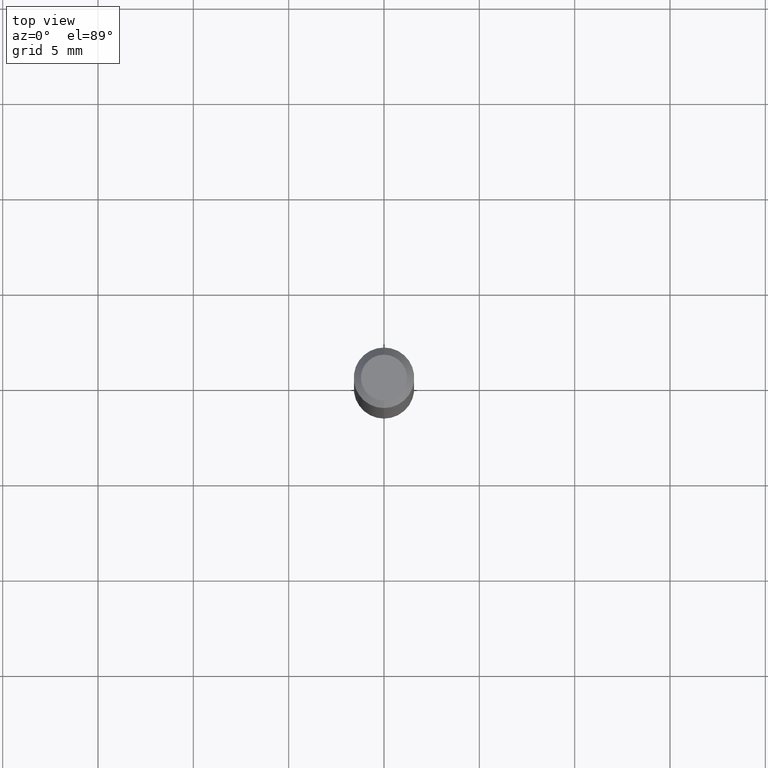
[diagram: clean part render]
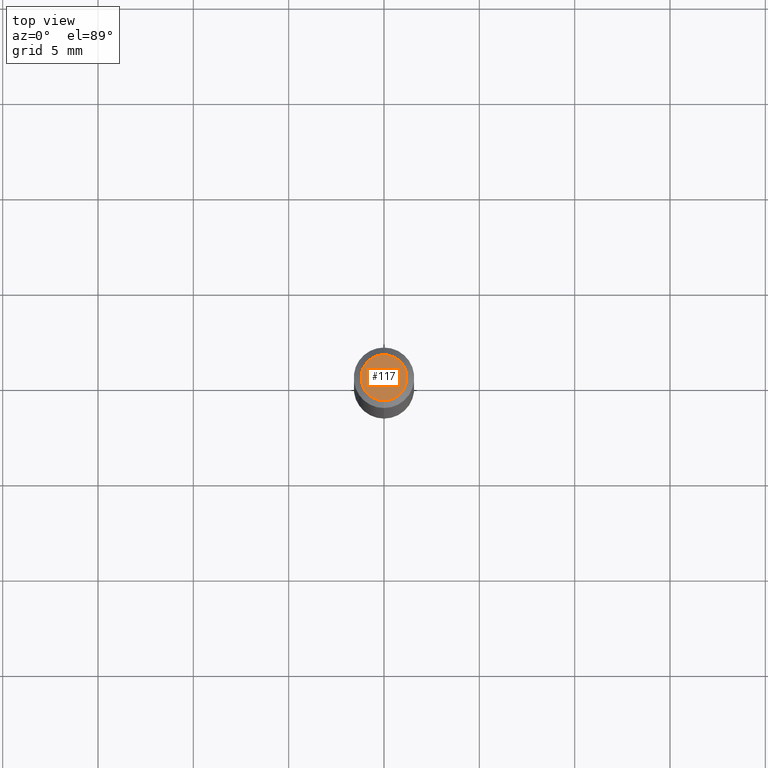
[diagram: same view with one face highlighted and labeled with its STEP entity id]
A machine part, top view. The second image highlights one B-rep face of the part: STEP entity #117.
In plain terms, the highlighted planar face has unit normal (0, -0, -1).
Its self-contained STEP definition (entity closure, byte-faithful):
#27 = FACE_OUTER_BOUND ( 'NONE', #53, .T. ) ;
#47 = CIRCLE ( 'NONE', #145, 0.04749999999999999362 ) ;
#52 = DIRECTION ( 'NONE',  ( -2.445473166795262930E-29, 3.491475094201254454E-15, 1.000000000000000000 ) ) ;
#53 = EDGE_LOOP ( 'NONE', ( #131, #425 ) ) ;
#69 = DIRECTION ( 'NONE',  ( 6.982962677686265922E-15, 1.000000000000000000, -3.491475094201254059E-15 ) ) ;
#73 = AXIS2_PLACEMENT_3D ( 'NONE', #316, #388, #440 ) ;
#82 = CARTESIAN_POINT ( 'NONE',  ( 2.166839918850192091E-46, -3.093662082459440029E-32, -8.860616212320934606E-18 ) ) ;
#108 = EDGE_CURVE ( 'NONE', #200, #278, #47, .T. ) ;
#112 = CIRCLE ( 'NONE', #73, 0.04749999999999999362 ) ;
#117 = ADVANCED_FACE ( 'NONE', ( #27 ), #498, .F. ) ;
#131 = ORIENTED_EDGE ( 'NONE', *, *, #108, .T. ) ;
#145 = AXIS2_PLACEMENT_3D ( 'NONE', #82, #52, #447 ) ;
#169 = AXIS2_PLACEMENT_3D ( 'NONE', #256, #339, #69 ) ;
#200 = VERTEX_POINT ( 'NONE', #439 ) ;
#256 = CARTESIAN_POINT ( 'NONE',  ( 3.316907271900976096E-16, 0.04749999999999999362, -1.702753750807200171E-16 ) ) ;
#278 = VERTEX_POINT ( 'NONE', #481 ) ;
#316 = CARTESIAN_POINT ( 'NONE',  ( 2.166839918850192091E-46, -3.093662082459440029E-32, -8.860616212320934606E-18 ) ) ;
#339 = DIRECTION ( 'NONE',  ( 2.445473166795262650E-29, -3.491475094201254059E-15, -1.000000000000000000 ) ) ;
#388 = DIRECTION ( 'NONE',  ( -2.445473166795262930E-29, 3.491475094201254454E-15, 1.000000000000000000 ) ) ;
#425 = ORIENTED_EDGE ( 'NONE', *, *, #489, .T. ) ;
#439 = CARTESIAN_POINT ( 'NONE',  ( 3.840629472727447874E-16, 0.04749999999999999362, -1.747056831868805136E-16 ) ) ;
#440 = DIRECTION ( 'NONE',  ( -6.982962677686266711E-15, -1.000000000000000000, 3.491475094201254454E-15 ) ) ;
#447 = DIRECTION ( 'NONE',  ( -6.982962677686266711E-15, -1.000000000000000000, 3.491475094201254454E-15 ) ) ;
#481 = CARTESIAN_POINT ( 'NONE',  ( -3.773273898774340269E-16, -0.04749999999999999362, 1.569844507622386506E-16 ) ) ;
#489 = EDGE_CURVE ( 'NONE', #278, #200, #112, .T. ) ;
#498 = PLANE ( 'NONE',  #169 ) ;